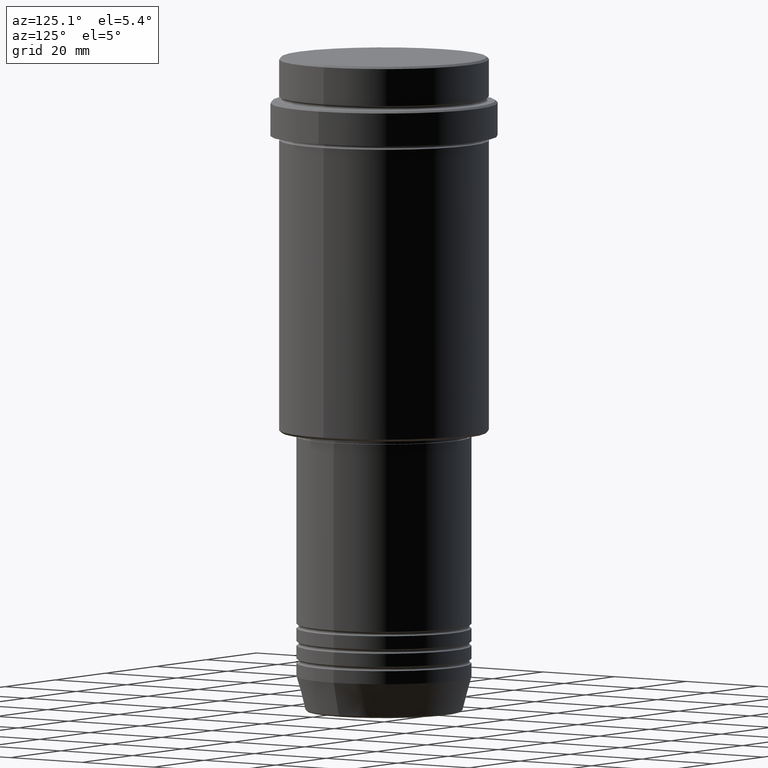
[diagram: clean part render]
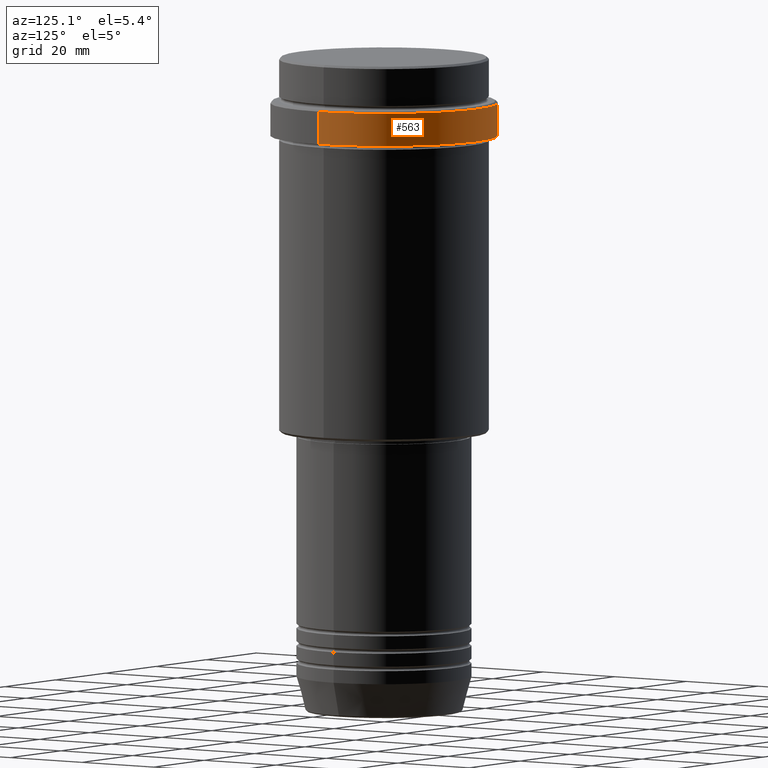
[diagram: same view with one face highlighted and labeled with its STEP entity id]
A machine part, auxiliary view. The second image highlights one B-rep face of the part: STEP entity #563.
In plain terms, the highlighted cylindrical surface (partial cylindrical patch) has radius 26 mm, axis along (-0, -0, 1).
Its self-contained STEP definition (entity closure, byte-faithful):
#12 = VERTEX_POINT ( 'NONE', #614 ) ;
#52 = EDGE_LOOP ( 'NONE', ( #735, #796, #1038, #688 ) ) ;
#75 = DIRECTION ( 'NONE',  ( -0.000000000000000000, -0.000000000000000000, 1.000000000000000000 ) ) ;
#114 = CARTESIAN_POINT ( 'NONE',  ( 25.99999999999998579, 0.000000000000000000, 0.000000000000000000 ) ) ;
#159 = CYLINDRICAL_SURFACE ( 'NONE', #532, 25.99999999999998579 ) ;
#206 = AXIS2_PLACEMENT_3D ( 'NONE', #402, #75, #1165 ) ;
#255 = VERTEX_POINT ( 'NONE', #1059 ) ;
#264 = EDGE_CURVE ( 'NONE', #918, #400, #805, .T. ) ;
#288 = CARTESIAN_POINT ( 'NONE',  ( 0.000000000000000000, 0.000000000000000000, 0.000000000000000000 ) ) ;
#309 = CARTESIAN_POINT ( 'NONE',  ( 0.000000000000000000, 0.000000000000000000, -10.50000000000002665 ) ) ;
#400 = VERTEX_POINT ( 'NONE', #1099 ) ;
#402 = CARTESIAN_POINT ( 'NONE',  ( 0.000000000000000000, 0.000000000000000000, -18.00000000000000355 ) ) ;
#405 = DIRECTION ( 'NONE',  ( -0.000000000000000000, -0.000000000000000000, 1.000000000000000000 ) ) ;
#431 = CIRCLE ( 'NONE', #206, 25.99999999999998579 ) ;
#497 = DIRECTION ( 'NONE',  ( 1.000000000000000000, 0.000000000000000000, 0.000000000000000000 ) ) ;
#532 = AXIS2_PLACEMENT_3D ( 'NONE', #288, #405, #497 ) ;
#539 = DIRECTION ( 'NONE',  ( 1.000000000000000000, 0.000000000000000000, 0.000000000000000000 ) ) ;
#563 = ADVANCED_FACE ( 'NONE', ( #1372 ), #159, .T. ) ;
#614 = CARTESIAN_POINT ( 'NONE',  ( 25.99999999999998579, 0.000000000000000000, -10.50000000000002665 ) ) ;
#688 = ORIENTED_EDGE ( 'NONE', *, *, #881, .F. ) ;
#735 = ORIENTED_EDGE ( 'NONE', *, *, #1253, .T. ) ;
#796 = ORIENTED_EDGE ( 'NONE', *, *, #264, .T. ) ;
#797 = AXIS2_PLACEMENT_3D ( 'NONE', #309, #1403, #539 ) ;
#805 = LINE ( 'NONE', #1237, #1095 ) ;
#881 = EDGE_CURVE ( 'NONE', #255, #12, #1174, .T. ) ;
#918 = VERTEX_POINT ( 'NONE', #1410 ) ;
#1038 = ORIENTED_EDGE ( 'NONE', *, *, #1062, .T. ) ;
#1059 = CARTESIAN_POINT ( 'NONE',  ( 25.99999999999998579, 0.000000000000000000, -18.00000000000000355 ) ) ;
#1062 = EDGE_CURVE ( 'NONE', #400, #12, #1275, .T. ) ;
#1095 = VECTOR ( 'NONE', #1242, 1000.000000000000000 ) ;
#1099 = CARTESIAN_POINT ( 'NONE',  ( -25.99999999999998579, 3.184081677783116613E-15, -10.50000000000002665 ) ) ;
#1165 = DIRECTION ( 'NONE',  ( 1.000000000000000000, 0.000000000000000000, 0.000000000000000000 ) ) ;
#1174 = LINE ( 'NONE', #114, #1252 ) ;
#1237 = CARTESIAN_POINT ( 'NONE',  ( -25.99999999999998579, 3.184081677783116613E-15, 0.000000000000000000 ) ) ;
#1242 = DIRECTION ( 'NONE',  ( -0.000000000000000000, -0.000000000000000000, 1.000000000000000000 ) ) ;
#1252 = VECTOR ( 'NONE', #1308, 1000.000000000000000 ) ;
#1253 = EDGE_CURVE ( 'NONE', #255, #918, #431, .T. ) ;
#1275 = CIRCLE ( 'NONE', #797, 25.99999999999998579 ) ;
#1308 = DIRECTION ( 'NONE',  ( -0.000000000000000000, -0.000000000000000000, 1.000000000000000000 ) ) ;
#1372 = FACE_OUTER_BOUND ( 'NONE', #52, .T. ) ;
#1403 = DIRECTION ( 'NONE',  ( 0.000000000000000000, 0.000000000000000000, -1.000000000000000000 ) ) ;
#1410 = CARTESIAN_POINT ( 'NONE',  ( -25.99999999999998579, 3.184081677783116613E-15, -18.00000000000000355 ) ) ;